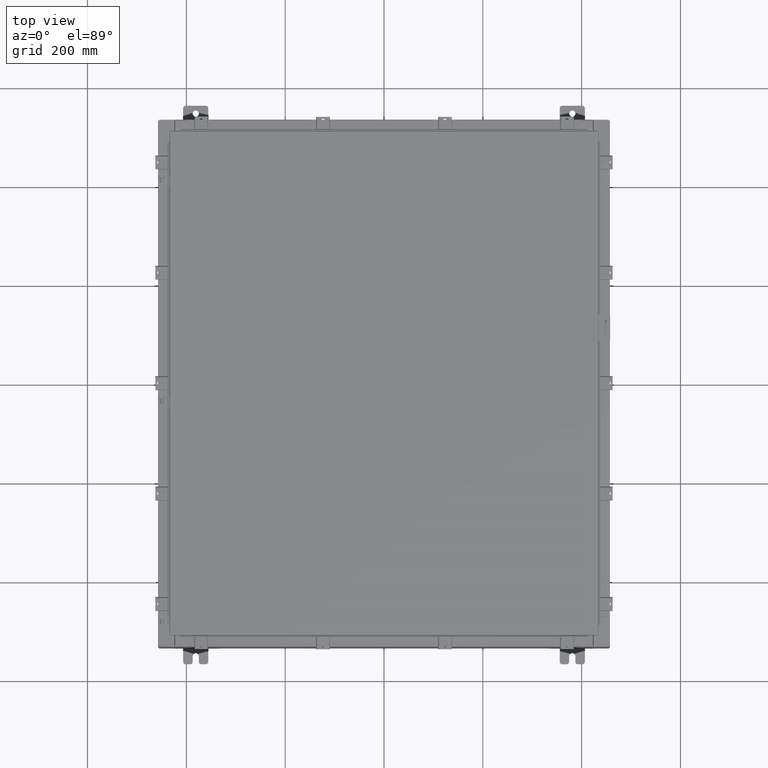
[diagram: clean part render]
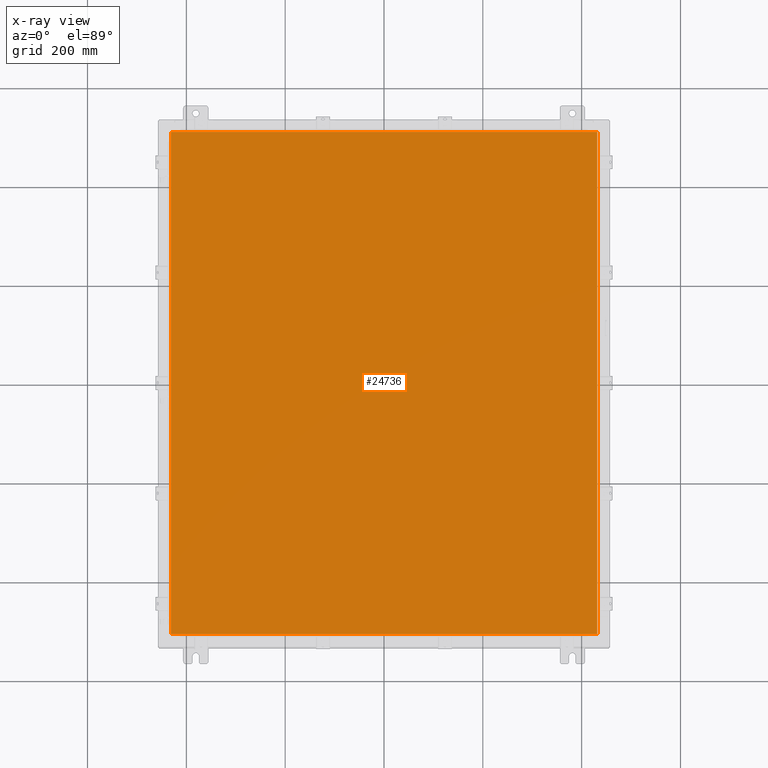
[diagram: x-ray — body ghosted, one internal face saturated and labeled with its STEP entity id]
A machine part, top view, then the same camera in x-ray: the body is ghosted and one INTERNAL B-rep face — a face not visible from any outside direction — is saturated and labeled: STEP entity #24736.
In plain terms, the highlighted planar face has unit normal (0, 0, -1).
Its self-contained STEP definition (entity closure, byte-faithful):
#80 = CARTESIAN_POINT ( 'NONE',  ( -16.99030000000000100, -20.00630000000000300, -0.07470000000000000300 ) ) ;
#761 = LINE ( 'NONE', #22993, #11262 ) ;
#1121 = VECTOR ( 'NONE', #10577, 39.37007874015748100 ) ;
#1328 = VECTOR ( 'NONE', #17885, 39.37007874015748100 ) ;
#1781 = LINE ( 'NONE', #23202, #1121 ) ;
#2300 = ORIENTED_EDGE ( 'NONE', *, *, #19430, .F. ) ;
#2527 = EDGE_CURVE ( 'NONE', #17133, #5235, #1781, .T. ) ;
#2792 = FACE_OUTER_BOUND ( 'NONE', #11727, .T. ) ;
#3925 = AXIS2_PLACEMENT_3D ( 'NONE', #23006, #27249, #14615 ) ;
#3987 = VERTEX_POINT ( 'NONE', #9123 ) ;
#5194 = CARTESIAN_POINT ( 'NONE',  ( -16.99029999999999400, -20.00630000000000300, -0.07470000000000234800 ) ) ;
#5235 = VERTEX_POINT ( 'NONE', #6448 ) ;
#6019 = CARTESIAN_POINT ( 'NONE',  ( 16.99029999999999800, -20.00630000000000000, -0.07470000000000000300 ) ) ;
#6448 = CARTESIAN_POINT ( 'NONE',  ( 16.99029999999999800, 20.00630000000000300, -0.07470000000000000300 ) ) ;
#7821 = VECTOR ( 'NONE', #17631, 39.37007874015748100 ) ;
#8198 = PLANE ( 'NONE',  #3925 ) ;
#9112 = LINE ( 'NONE', #15486, #7821 ) ;
#9123 = CARTESIAN_POINT ( 'NONE',  ( -16.99030000000000100, 20.00630000000000300, -0.07470000000000000300 ) ) ;
#10577 = DIRECTION ( 'NONE',  ( 0.0000000000000000000, 1.000000000000000000, 0.0000000000000000000 ) ) ;
#11079 = ORIENTED_EDGE ( 'NONE', *, *, #15191, .F. ) ;
#11230 = ORIENTED_EDGE ( 'NONE', *, *, #2527, .F. ) ;
#11262 = VECTOR ( 'NONE', #25103, 39.37007874015748100 ) ;
#11502 = EDGE_CURVE ( 'NONE', #15815, #17133, #12471, .T. ) ;
#11727 = EDGE_LOOP ( 'NONE', ( #11230, #22360, #11079, #2300 ) ) ;
#12471 = LINE ( 'NONE', #5194, #1328 ) ;
#14615 = DIRECTION ( 'NONE',  ( -1.000000000000000000, 0.0000000000000000000, -0.0000000000000000000 ) ) ;
#15191 = EDGE_CURVE ( 'NONE', #3987, #15815, #9112, .T. ) ;
#15486 = CARTESIAN_POINT ( 'NONE',  ( -16.99030000000000100, 20.00630000000000300, -0.07470000000000019700 ) ) ;
#15815 = VERTEX_POINT ( 'NONE', #80 ) ;
#17133 = VERTEX_POINT ( 'NONE', #6019 ) ;
#17631 = DIRECTION ( 'NONE',  ( 0.0000000000000000000, -1.000000000000000000, 0.0000000000000000000 ) ) ;
#17885 = DIRECTION ( 'NONE',  ( 1.000000000000000000, -0.0000000000000000000, -0.0000000000000000000 ) ) ;
#19430 = EDGE_CURVE ( 'NONE', #5235, #3987, #761, .T. ) ;
#22360 = ORIENTED_EDGE ( 'NONE', *, *, #11502, .F. ) ;
#22993 = CARTESIAN_POINT ( 'NONE',  ( 16.99029999999999800, 20.00630000000000700, -0.07469999999999804600 ) ) ;
#23006 = CARTESIAN_POINT ( 'NONE',  ( 0.0000000000000000000, 0.0000000000000000000, -0.07470000000000000300 ) ) ;
#23202 = CARTESIAN_POINT ( 'NONE',  ( 16.99029999999999800, -20.00630000000000300, -0.07470000000000019700 ) ) ;
#24736 = ADVANCED_FACE ( 'NONE', ( #2792 ), #8198, .T. ) ;
#25103 = DIRECTION ( 'NONE',  ( -1.000000000000000000, -0.0000000000000000000, -0.0000000000000000000 ) ) ;
#27249 = DIRECTION ( 'NONE',  ( 0.0000000000000000000, 0.0000000000000000000, -1.000000000000000000 ) ) ;